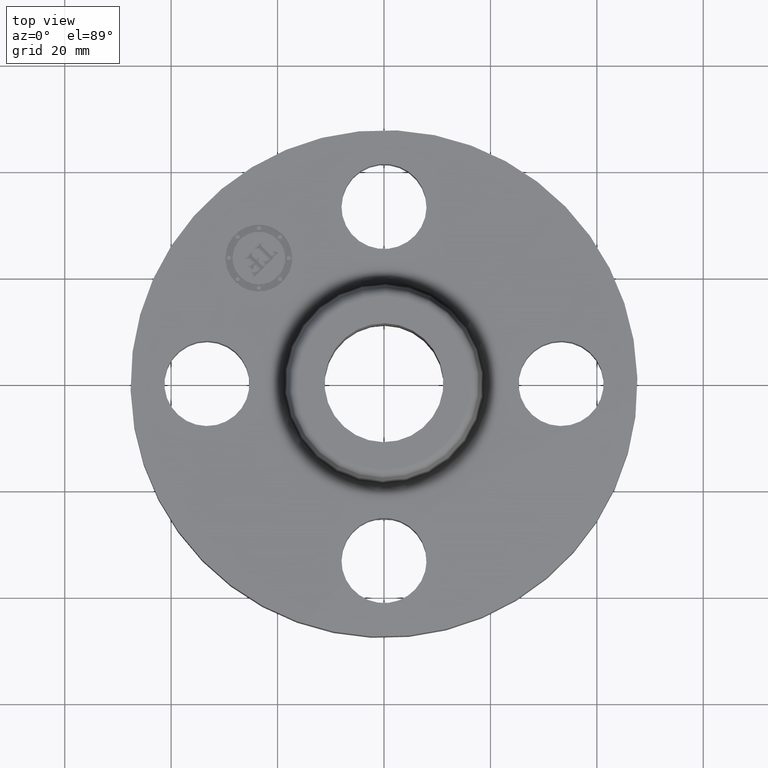
[diagram: clean part render]
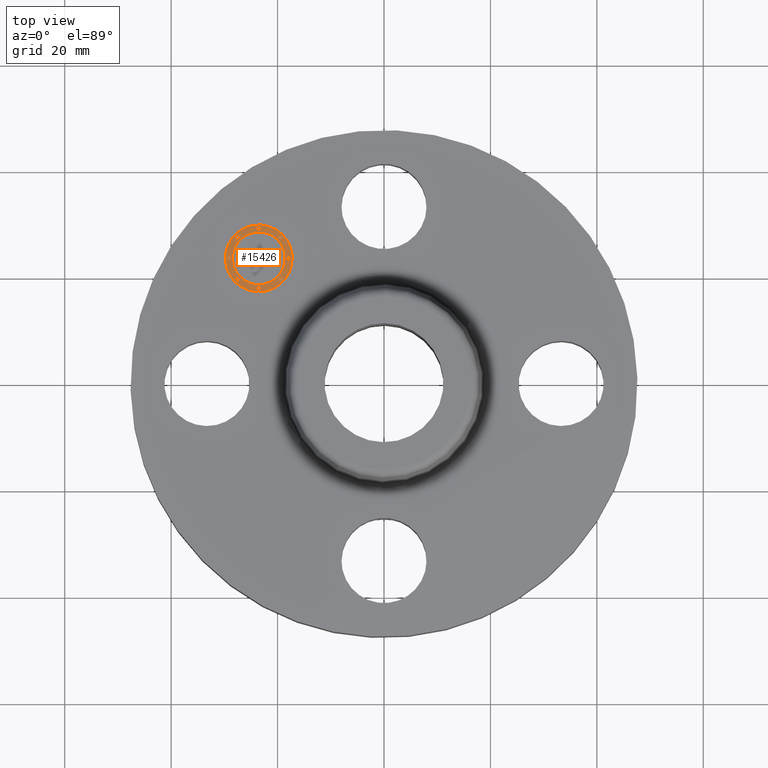
[diagram: same view with one face highlighted and labeled with its STEP entity id]
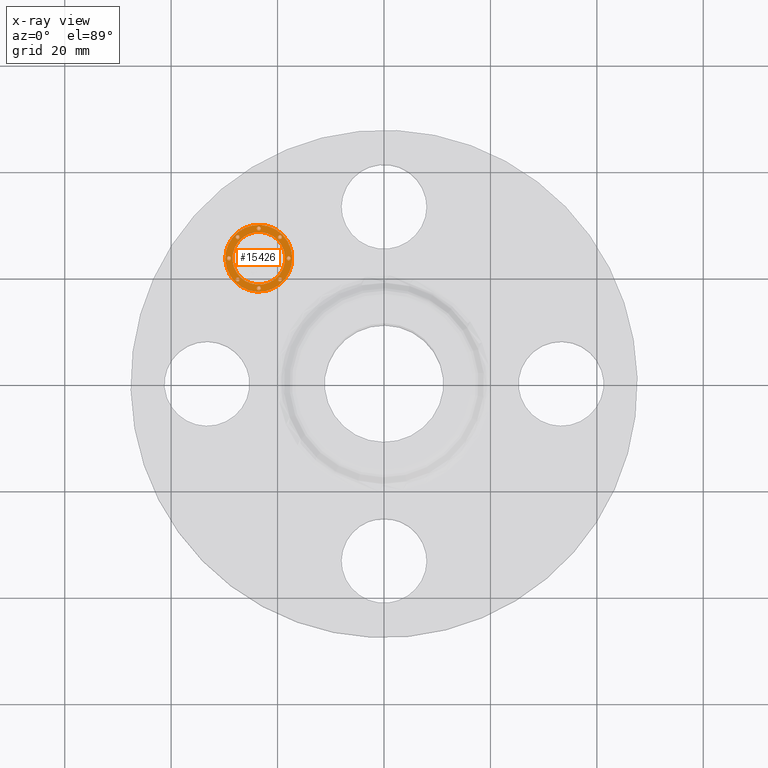
[diagram: x-ray of the same camera — body ghosted, the highlighted face saturated]
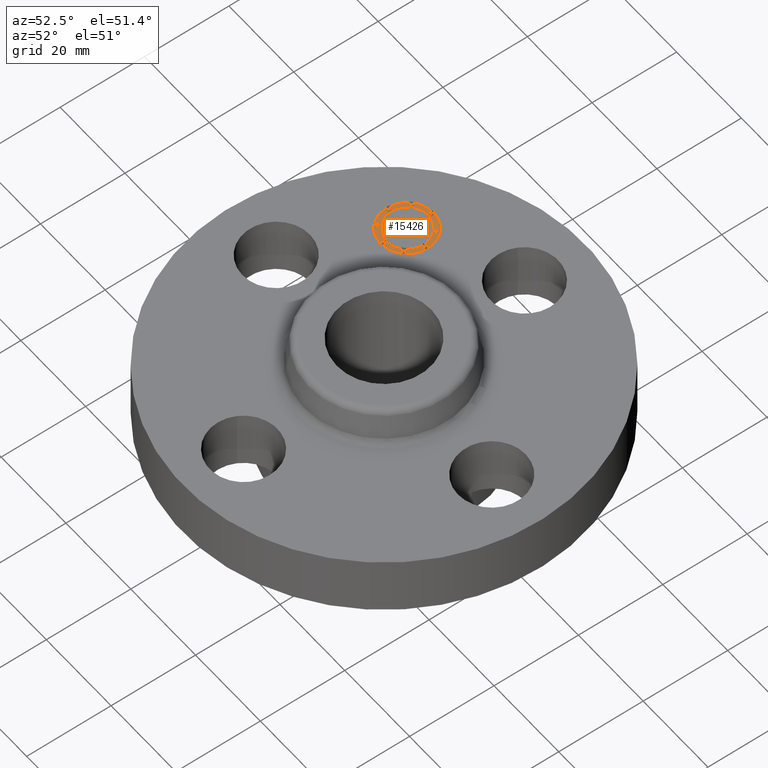
[diagram: same view with one face highlighted and labeled with its STEP entity id]
A machine part, top view. The second image highlights one B-rep face of the part: STEP entity #15426.
The next image is the same camera in x-ray: the body ghosted, the highlighted face saturated — about 0% of this face is hidden behind the body in this view.
A second angle (auxiliary view) of the same face is appended — the face is thin or edge-on in the first view.
In plain terms, the highlighted planar face has unit normal (0, -0, 1).
Its self-contained STEP definition (entity closure, byte-faithful):
#4077=AXIS2_PLACEMENT_3D('Plane Axis2P3D',#4074,#4075,#4076) ;
#15248=AXIS2_PLACEMENT_3D('Circle Axis2P3D',#15246,#15247,$) ;
#15257=AXIS2_PLACEMENT_3D('Circle Axis2P3D',#15255,#15256,$) ;
#15266=AXIS2_PLACEMENT_3D('Circle Axis2P3D',#15264,#15265,$) ;
#15275=AXIS2_PLACEMENT_3D('Circle Axis2P3D',#15273,#15274,$) ;
#15284=AXIS2_PLACEMENT_3D('Circle Axis2P3D',#15282,#15283,$) ;
#15293=AXIS2_PLACEMENT_3D('Circle Axis2P3D',#15291,#15292,$) ;
#15302=AXIS2_PLACEMENT_3D('Circle Axis2P3D',#15300,#15301,$) ;
#15311=AXIS2_PLACEMENT_3D('Circle Axis2P3D',#15309,#15310,$) ;
#15320=AXIS2_PLACEMENT_3D('Circle Axis2P3D',#15318,#15319,$) ;
#15329=AXIS2_PLACEMENT_3D('Circle Axis2P3D',#15327,#15328,$) ;
#15338=AXIS2_PLACEMENT_3D('Circle Axis2P3D',#15336,#15337,$) ;
#15347=AXIS2_PLACEMENT_3D('Circle Axis2P3D',#15345,#15346,$) ;
#15356=AXIS2_PLACEMENT_3D('Circle Axis2P3D',#15354,#15355,$) ;
#15365=AXIS2_PLACEMENT_3D('Circle Axis2P3D',#15363,#15364,$) ;
#15374=AXIS2_PLACEMENT_3D('Circle Axis2P3D',#15372,#15373,$) ;
#15383=AXIS2_PLACEMENT_3D('Circle Axis2P3D',#15381,#15382,$) ;
#15392=AXIS2_PLACEMENT_3D('Circle Axis2P3D',#15390,#15391,$) ;
#15401=AXIS2_PLACEMENT_3D('Circle Axis2P3D',#15399,#15400,$) ;
#15410=AXIS2_PLACEMENT_3D('Circle Axis2P3D',#15408,#15409,$) ;
#15419=AXIS2_PLACEMENT_3D('Circle Axis2P3D',#15417,#15418,$) ;
#4074=CARTESIAN_POINT('Axis2P3D Location',(0.,0.,0.545000000002)) ;
#15246=CARTESIAN_POINT('Axis2P3D Location',(-0.926309883358,0.926309883358,0.545000000002)) ;
#15250=CARTESIAN_POINT('Vertex',(-1.1013188117,0.751300955014,0.545000000002)) ;
#15252=CARTESIAN_POINT('Vertex',(-0.751300955014,1.1013188117,0.545000000002)) ;
#15255=CARTESIAN_POINT('Axis2P3D Location',(-0.926309883358,0.926309883358,0.545000000002)) ;
#15264=CARTESIAN_POINT('Axis2P3D Location',(-0.926309883358,0.926309883358,0.545000000002)) ;
#15268=CARTESIAN_POINT('Vertex',(-0.788424061026,1.06419570569,0.545000000002)) ;
#15270=CARTESIAN_POINT('Vertex',(-1.06419570569,0.788424061026,0.545000000002)) ;
#15273=CARTESIAN_POINT('Axis2P3D Location',(-0.926309883358,0.926309883358,0.545000000002)) ;
#15282=CARTESIAN_POINT('Axis2P3D Location',(-0.76986250802,0.76986250802,0.545000000002)) ;
#15286=CARTESIAN_POINT('Vertex',(-0.759255906302,0.780469109738,0.545000000002)) ;
#15288=CARTESIAN_POINT('Vertex',(-0.780469109738,0.759255906302,0.545000000002)) ;
#15291=CARTESIAN_POINT('Axis2P3D Location',(-0.76986250802,0.76986250802,0.545000000002)) ;
#15300=CARTESIAN_POINT('Axis2P3D Location',(-1.0827572587,0.76986250802,0.545000000002)) ;
#15304=CARTESIAN_POINT('Vertex',(-1.07215065698,0.780469109738,0.545000000002)) ;
#15306=CARTESIAN_POINT('Vertex',(-1.09336386041,0.759255906302,0.545000000002)) ;
#15309=CARTESIAN_POINT('Axis2P3D Location',(-1.0827572587,0.76986250802,0.545000000002)) ;
#15318=CARTESIAN_POINT('Axis2P3D Location',(-0.926309883358,0.705059883357,0.545000000002)) ;
#15322=CARTESIAN_POINT('Vertex',(-0.91570328164,0.715666485075,0.545000000002)) ;
#15324=CARTESIAN_POINT('Vertex',(-0.936916485076,0.694453281639,0.545000000002)) ;
#15327=CARTESIAN_POINT('Axis2P3D Location',(-0.926309883358,0.705059883357,0.545000000002)) ;
#15336=CARTESIAN_POINT('Axis2P3D Location',(-1.0827572587,1.0827572587,0.545000000002)) ;
#15340=CARTESIAN_POINT('Vertex',(-1.07215065698,1.09336386041,0.545000000002)) ;
#15342=CARTESIAN_POINT('Vertex',(-1.09336386041,1.07215065698,0.545000000002)) ;
#15345=CARTESIAN_POINT('Axis2P3D Location',(-1.0827572587,1.0827572587,0.545000000002)) ;
#15354=CARTESIAN_POINT('Axis2P3D Location',(-1.14755988336,0.926309883358,0.545000000002)) ;
#15358=CARTESIAN_POINT('Vertex',(-1.13695328164,0.936916485076,0.545000000002)) ;
#15360=CARTESIAN_POINT('Vertex',(-1.15816648508,0.91570328164,0.545000000002)) ;
#15363=CARTESIAN_POINT('Axis2P3D Location',(-1.14755988336,0.926309883358,0.545000000002)) ;
#15372=CARTESIAN_POINT('Axis2P3D Location',(-0.76986250802,1.0827572587,0.545000000002)) ;
#15376=CARTESIAN_POINT('Vertex',(-0.780469109738,1.07215065698,0.545000000002)) ;
#15378=CARTESIAN_POINT('Vertex',(-0.759255906302,1.09336386041,0.545000000002)) ;
#15381=CARTESIAN_POINT('Axis2P3D Location',(-0.76986250802,1.0827572587,0.545000000002)) ;
#15390=CARTESIAN_POINT('Axis2P3D Location',(-0.705059883357,0.926309883358,0.545000000002)) ;
#15394=CARTESIAN_POINT('Vertex',(-0.715666485075,0.91570328164,0.545000000002)) ;
#15396=CARTESIAN_POINT('Vertex',(-0.694453281639,0.936916485076,0.545000000002)) ;
#15399=CARTESIAN_POINT('Axis2P3D Location',(-0.705059883357,0.926309883358,0.545000000002)) ;
#15408=CARTESIAN_POINT('Axis2P3D Location',(-0.926309883358,1.14755988336,0.545000000002)) ;
#15412=CARTESIAN_POINT('Vertex',(-0.936916485076,1.13695328164,0.545000000002)) ;
#15414=CARTESIAN_POINT('Vertex',(-0.91570328164,1.15816648508,0.545000000002)) ;
#15417=CARTESIAN_POINT('Axis2P3D Location',(-0.926309883358,1.14755988336,0.545000000002)) ;
#4075=DIRECTION('Axis2P3D Direction',(0.,-0.,0.0393700787402)) ;
#4076=DIRECTION('Axis2P3D XDirection',(0.027838849653,0.027838849653,0.)) ;
#15247=DIRECTION('Axis2P3D Direction',(0.,-0.,0.0393700787402)) ;
#15256=DIRECTION('Axis2P3D Direction',(0.,-0.,0.0393700787402)) ;
#15265=DIRECTION('Axis2P3D Direction',(0.,-0.,0.0393700787402)) ;
#15274=DIRECTION('Axis2P3D Direction',(0.,-0.,0.0393700787402)) ;
#15283=DIRECTION('Axis2P3D Direction',(0.,-0.,0.0393700787402)) ;
#15292=DIRECTION('Axis2P3D Direction',(0.,-0.,0.0393700787402)) ;
#15301=DIRECTION('Axis2P3D Direction',(0.,-0.,0.0393700787402)) ;
#15310=DIRECTION('Axis2P3D Direction',(0.,-0.,0.0393700787402)) ;
#15319=DIRECTION('Axis2P3D Direction',(0.,-0.,0.0393700787402)) ;
#15328=DIRECTION('Axis2P3D Direction',(0.,-0.,0.0393700787402)) ;
#15337=DIRECTION('Axis2P3D Direction',(0.,-0.,0.0393700787402)) ;
#15346=DIRECTION('Axis2P3D Direction',(0.,-0.,0.0393700787402)) ;
#15355=DIRECTION('Axis2P3D Direction',(0.,-0.,0.0393700787402)) ;
#15364=DIRECTION('Axis2P3D Direction',(0.,-0.,0.0393700787402)) ;
#15373=DIRECTION('Axis2P3D Direction',(0.,-0.,0.0393700787402)) ;
#15382=DIRECTION('Axis2P3D Direction',(0.,-0.,0.0393700787402)) ;
#15391=DIRECTION('Axis2P3D Direction',(0.,-0.,0.0393700787402)) ;
#15400=DIRECTION('Axis2P3D Direction',(0.,-0.,0.0393700787402)) ;
#15409=DIRECTION('Axis2P3D Direction',(0.,-0.,0.0393700787402)) ;
#15418=DIRECTION('Axis2P3D Direction',(0.,-0.,0.0393700787402)) ;
#15261=ORIENTED_EDGE('',*,*,#15254,.T.) ;
#15262=ORIENTED_EDGE('',*,*,#15259,.T.) ;
#15279=ORIENTED_EDGE('',*,*,#15272,.F.) ;
#15280=ORIENTED_EDGE('',*,*,#15277,.F.) ;
#15297=ORIENTED_EDGE('',*,*,#15290,.F.) ;
#15298=ORIENTED_EDGE('',*,*,#15295,.F.) ;
#15315=ORIENTED_EDGE('',*,*,#15308,.F.) ;
#15316=ORIENTED_EDGE('',*,*,#15313,.F.) ;
#15333=ORIENTED_EDGE('',*,*,#15326,.F.) ;
#15334=ORIENTED_EDGE('',*,*,#15331,.F.) ;
#15351=ORIENTED_EDGE('',*,*,#15344,.F.) ;
#15352=ORIENTED_EDGE('',*,*,#15349,.F.) ;
#15369=ORIENTED_EDGE('',*,*,#15362,.F.) ;
#15370=ORIENTED_EDGE('',*,*,#15367,.F.) ;
#15387=ORIENTED_EDGE('',*,*,#15380,.F.) ;
#15388=ORIENTED_EDGE('',*,*,#15385,.F.) ;
#15405=ORIENTED_EDGE('',*,*,#15398,.F.) ;
#15406=ORIENTED_EDGE('',*,*,#15403,.F.) ;
#15423=ORIENTED_EDGE('',*,*,#15416,.F.) ;
#15424=ORIENTED_EDGE('',*,*,#15421,.F.) ;
#15281=FACE_BOUND('',#15278,.T.) ;
#15299=FACE_BOUND('',#15296,.T.) ;
#15317=FACE_BOUND('',#15314,.T.) ;
#15335=FACE_BOUND('',#15332,.T.) ;
#15353=FACE_BOUND('',#15350,.T.) ;
#15371=FACE_BOUND('',#15368,.T.) ;
#15389=FACE_BOUND('',#15386,.T.) ;
#15407=FACE_BOUND('',#15404,.T.) ;
#15425=FACE_BOUND('',#15422,.T.) ;
#15426=ADVANCED_FACE('PartBody',(#15263,#15281,#15299,#15317,#15335,#15353,#15371,#15389,#15407,#15425),#4078,.T.) ;
#15249=CIRCLE('generated circle',#15248,0.247500000001) ;
#15258=CIRCLE('generated circle',#15257,0.247500000001) ;
#15267=CIRCLE('generated circle',#15266,0.195000000001) ;
#15276=CIRCLE('generated circle',#15275,0.195000000001) ;
#15285=CIRCLE('generated circle',#15284,0.0150000000001) ;
#15294=CIRCLE('generated circle',#15293,0.0150000000001) ;
#15303=CIRCLE('generated circle',#15302,0.0150000000001) ;
#15312=CIRCLE('generated circle',#15311,0.0150000000001) ;
#15321=CIRCLE('generated circle',#15320,0.0150000000001) ;
#15330=CIRCLE('generated circle',#15329,0.0150000000001) ;
#15339=CIRCLE('generated circle',#15338,0.0150000000001) ;
#15348=CIRCLE('generated circle',#15347,0.0150000000001) ;
#15357=CIRCLE('generated circle',#15356,0.0150000000001) ;
#15366=CIRCLE('generated circle',#15365,0.0150000000001) ;
#15375=CIRCLE('generated circle',#15374,0.0150000000001) ;
#15384=CIRCLE('generated circle',#15383,0.0150000000001) ;
#15393=CIRCLE('generated circle',#15392,0.0150000000001) ;
#15402=CIRCLE('generated circle',#15401,0.0150000000001) ;
#15411=CIRCLE('generated circle',#15410,0.0150000000001) ;
#15420=CIRCLE('generated circle',#15419,0.0150000000001) ;
#15254=EDGE_CURVE('',#15251,#15253,#15249,.T.) ;
#15259=EDGE_CURVE('',#15253,#15251,#15258,.T.) ;
#15272=EDGE_CURVE('',#15269,#15271,#15267,.T.) ;
#15277=EDGE_CURVE('',#15271,#15269,#15276,.T.) ;
#15290=EDGE_CURVE('',#15287,#15289,#15285,.T.) ;
#15295=EDGE_CURVE('',#15289,#15287,#15294,.T.) ;
#15308=EDGE_CURVE('',#15305,#15307,#15303,.T.) ;
#15313=EDGE_CURVE('',#15307,#15305,#15312,.T.) ;
#15326=EDGE_CURVE('',#15323,#15325,#15321,.T.) ;
#15331=EDGE_CURVE('',#15325,#15323,#15330,.T.) ;
#15344=EDGE_CURVE('',#15341,#15343,#15339,.T.) ;
#15349=EDGE_CURVE('',#15343,#15341,#15348,.T.) ;
#15362=EDGE_CURVE('',#15359,#15361,#15357,.T.) ;
#15367=EDGE_CURVE('',#15361,#15359,#15366,.T.) ;
#15380=EDGE_CURVE('',#15377,#15379,#15375,.T.) ;
#15385=EDGE_CURVE('',#15379,#15377,#15384,.T.) ;
#15398=EDGE_CURVE('',#15395,#15397,#15393,.T.) ;
#15403=EDGE_CURVE('',#15397,#15395,#15402,.T.) ;
#15416=EDGE_CURVE('',#15413,#15415,#15411,.T.) ;
#15421=EDGE_CURVE('',#15415,#15413,#15420,.T.) ;
#15260=EDGE_LOOP('',(#15261,#15262)) ;
#15278=EDGE_LOOP('',(#15279,#15280)) ;
#15296=EDGE_LOOP('',(#15297,#15298)) ;
#15314=EDGE_LOOP('',(#15315,#15316)) ;
#15332=EDGE_LOOP('',(#15333,#15334)) ;
#15350=EDGE_LOOP('',(#15351,#15352)) ;
#15368=EDGE_LOOP('',(#15369,#15370)) ;
#15386=EDGE_LOOP('',(#15387,#15388)) ;
#15404=EDGE_LOOP('',(#15405,#15406)) ;
#15422=EDGE_LOOP('',(#15423,#15424)) ;
#15263=FACE_OUTER_BOUND('',#15260,.T.) ;
#4078=PLANE('',#4077) ;
#15251=VERTEX_POINT('',#15250) ;
#15253=VERTEX_POINT('',#15252) ;
#15269=VERTEX_POINT('',#15268) ;
#15271=VERTEX_POINT('',#15270) ;
#15287=VERTEX_POINT('',#15286) ;
#15289=VERTEX_POINT('',#15288) ;
#15305=VERTEX_POINT('',#15304) ;
#15307=VERTEX_POINT('',#15306) ;
#15323=VERTEX_POINT('',#15322) ;
#15325=VERTEX_POINT('',#15324) ;
#15341=VERTEX_POINT('',#15340) ;
#15343=VERTEX_POINT('',#15342) ;
#15359=VERTEX_POINT('',#15358) ;
#15361=VERTEX_POINT('',#15360) ;
#15377=VERTEX_POINT('',#15376) ;
#15379=VERTEX_POINT('',#15378) ;
#15395=VERTEX_POINT('',#15394) ;
#15397=VERTEX_POINT('',#15396) ;
#15413=VERTEX_POINT('',#15412) ;
#15415=VERTEX_POINT('',#15414) ;